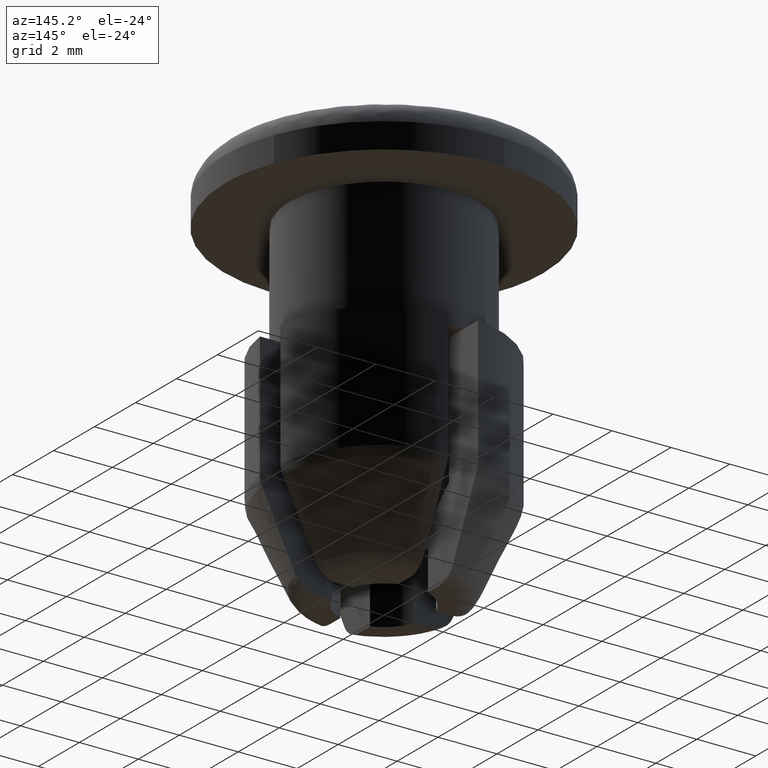
[diagram: clean part render]
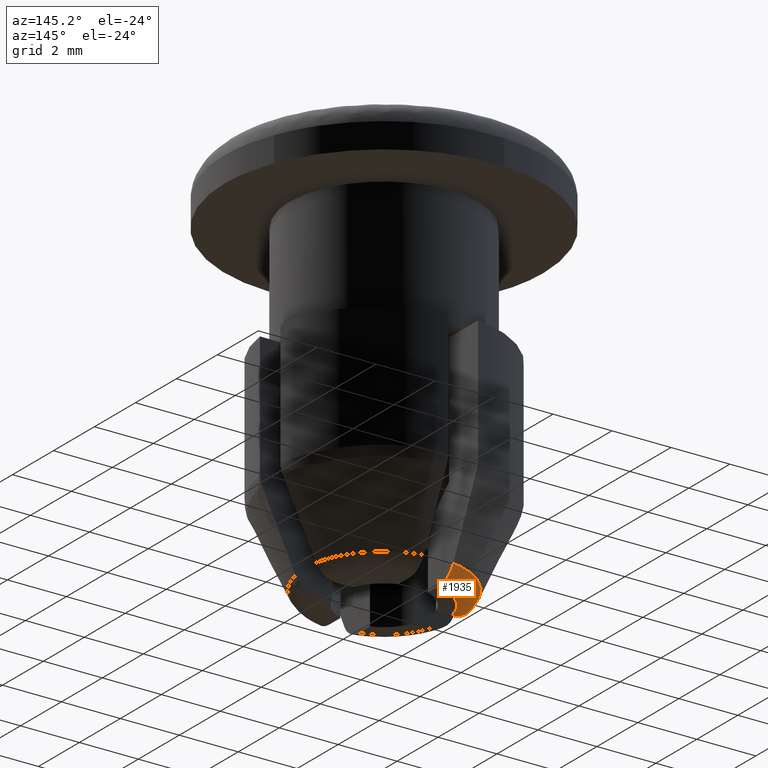
[diagram: same view with one face highlighted and labeled with its STEP entity id]
A machine part, auxiliary view. The second image highlights one B-rep face of the part: STEP entity #1935.
In plain terms, the highlighted face is a freeform B-spline surface patch.
Its self-contained STEP definition (entity closure, byte-faithful):
#1609=CARTESIAN_POINT('',(-1.959617758645800,0.500000000000000,-13.500299999999999));
#1610=VERTEX_POINT('',#1609);
#1618=CARTESIAN_POINT('',(-0.500000000000011,1.959617758645800,-13.500299999999999));
#1619=VERTEX_POINT('',#1618);
#1620=CARTESIAN_POINT('',(-1.959617758645803,0.500000000000001,-13.500299999999999));
#1621=CARTESIAN_POINT('',(-1.662901377916503,1.662901377916493,-13.500300000000005));
#1622=CARTESIAN_POINT('',(-0.500000000000011,1.959617758645800,-13.500299999999999));
#1630=(BOUNDED_CURVE()B_SPLINE_CURVE(2,(#1620,#1621,#1622),.UNSPECIFIED.,.F.,.U.)CURVE()GEOMETRIC_REPRESENTATION_ITEM()QUASI_UNIFORM_CURVE()RATIONAL_B_SPLINE_CURVE((1.0,0.859974483912830,1.0))REPRESENTATION_ITEM(''));
#1631=EDGE_CURVE('',#1610,#1619,#1630,.T.);
#1861=CARTESIAN_POINT('',(-2.698645826319179,0.352734620559445,-13.021626771915608));
#1862=CARTESIAN_POINT('',(-2.427462303505342,2.427462303505342,-13.021626771915605));
#1863=CARTESIAN_POINT('',(-0.352734620559445,2.698645826319180,-13.021626771915608));
#1864=CARTESIAN_POINT('',(-2.503634184457258,0.327245037292914,-13.528440481045426));
#1865=CARTESIAN_POINT('',(-2.252047136110007,2.252047136110007,-13.528440481045424));
#1866=CARTESIAN_POINT('',(-0.327245037292914,2.503634184457258,-13.528440481045426));
#1867=CARTESIAN_POINT('',(-1.965363539264359,0.256888753434289,-13.499215475931072));
#1868=CARTESIAN_POINT('',(-1.767866630633510,1.767866630633510,-13.499215475931070));
#1869=CARTESIAN_POINT('',(-0.256888753434289,1.965363539264359,-13.499215475931072));
#1877=(BOUNDED_SURFACE()B_SPLINE_SURFACE(2,2,((#1861,#1864,#1867),(#1862,#1865,#1868),(#1863,#1866,#1869)),.UNSPECIFIED.,.F.,.F.,.U.)B_SPLINE_SURFACE_WITH_KNOTS((3,3),(3,3),(0.0,3.701073293588391),(0.0,0.972917662462895),.UNSPECIFIED.)GEOMETRIC_REPRESENTATION_ITEM()RATIONAL_B_SPLINE_SURFACE(((0.855282404769445,0.692124573890833,0.854365498112586),(0.678057418842422,0.548707888146415,0.677330506471020),(0.855282404769445,0.692124573890833,0.854365498112586)))REPRESENTATION_ITEM('')SURFACE());
#1878=CARTESIAN_POINT('',(-2.659426441461195,0.500000000000000,-13.058784187287459));
#1879=VERTEX_POINT('',#1878);
#1880=CARTESIAN_POINT('',(-2.659426441461195,0.500000000000000,-13.058784187287459));
#1881=CARTESIAN_POINT('',(-2.644259815729508,0.500000000000000,-13.091815681517550));
#1882=CARTESIAN_POINT('',(-2.626767658830750,0.500000000000000,-13.123550012450480));
#1883=CARTESIAN_POINT('',(-2.587167287803199,0.500000000000000,-13.184443873298310));
#1884=CARTESIAN_POINT('',(-2.564892510702044,0.500000000000000,-13.213777337699870));
#1885=CARTESIAN_POINT('',(-2.492201616201009,0.500000000000000,-13.296150113837550));
#1886=CARTESIAN_POINT('',(-2.435498832129888,0.500000000000000,-13.343947118549440));
#1887=CARTESIAN_POINT('',(-2.343390389883233,0.500000000000000,-13.401527285124640));
#1888=CARTESIAN_POINT('',(-2.311388330176010,0.500000000000000,-13.418515543480590));
#1889=CARTESIAN_POINT('',(-2.244763285732630,0.500000000000000,-13.448043723700380));
#1890=CARTESIAN_POINT('',(-2.210049009238829,0.500000000000000,-13.460561381392189));
#1891=CARTESIAN_POINT('',(-2.140147149059850,0.500000000000000,-13.480372387469670));
#1892=CARTESIAN_POINT('',(-2.104700392234157,0.500000000000000,-13.487798098153950));
#1893=CARTESIAN_POINT('',(-2.032830212693233,0.500000000000000,-13.497764892637949));
#1894=CARTESIAN_POINT('',(-1.996148382377332,0.500000000000000,-13.500299999999999));
#1895=CARTESIAN_POINT('',(-1.959617758645800,0.500000000000000,-13.500299999999999));
#1896=B_SPLINE_CURVE_WITH_KNOTS('',3,(#1880,#1881,#1882,#1883,#1884,#1885,#1886,#1887,#1888,#1889,#1890,#1891,#1892,#1893,#1894,#1895),.UNSPECIFIED.,.F.,.U.,(4,2,2,2,2,2,2,4),(0.0,0.125000000000001,0.250000000000002,0.499999999999999,0.624999999999999,0.750000000000000,0.875000000000000,1.0),.UNSPECIFIED.);
#1897=EDGE_CURVE('',#1879,#1610,#1896,.T.);
#1898=ORIENTED_EDGE('',*,*,#1897,.F.);
#1899=CARTESIAN_POINT('',(-0.500000000000011,2.659426441460640,-13.058784187287300));
#1900=VERTEX_POINT('',#1899);
#1901=CARTESIAN_POINT('',(-2.659426441461195,0.500000000000000,-13.058784187287459));
#1902=CARTESIAN_POINT('',(-2.317683014058383,2.317683014058286,-13.058784187287300));
#1903=CARTESIAN_POINT('',(-0.500000000000011,2.659426441460640,-13.058784187287300));
#1911=(BOUNDED_CURVE()B_SPLINE_CURVE(2,(#1901,#1902,#1903),.UNSPECIFIED.,.F.,.U.)CURVE()GEOMETRIC_REPRESENTATION_ITEM()QUASI_UNIFORM_CURVE()RATIONAL_B_SPLINE_CURVE((1.0,0.825585596460424,1.0))REPRESENTATION_ITEM(''));
#1912=EDGE_CURVE('',#1879,#1900,#1911,.T.);
#1913=ORIENTED_EDGE('',*,*,#1912,.T.);
#1914=CARTESIAN_POINT('',(-0.500000000000011,1.959617758645800,-13.500299999999999));
#1915=CARTESIAN_POINT('',(-0.500000000000011,2.032817680387002,-13.500299999999999));
#1916=CARTESIAN_POINT('',(-0.500000000000011,2.104607918084249,-13.490430828910830));
#1917=CARTESIAN_POINT('',(-0.500000000000011,2.210138686550090,-13.460542842247150));
#1918=CARTESIAN_POINT('',(-0.500000000000011,2.244838813340626,-13.448008946742011));
#1919=CARTESIAN_POINT('',(-0.500000000000011,2.311266478753997,-13.418570850217460));
#1920=CARTESIAN_POINT('',(-0.500000000000011,2.343281598257899,-13.401594799027951));
#1921=CARTESIAN_POINT('',(-0.500000000000011,2.404889809701285,-13.363082370384079));
#1922=CARTESIAN_POINT('',(-0.500000000000011,2.434709675156670,-13.341342899601610));
#1923=CARTESIAN_POINT('',(-0.500000000000011,2.490514401817669,-13.294070597990521));
#1924=CARTESIAN_POINT('',(-0.500000000000011,2.542381532553250,-13.243229475829169));
#1925=CARTESIAN_POINT('',(-0.500000000000011,2.586514984159994,-13.185378971921470));
#1926=CARTESIAN_POINT('',(-0.500000000000011,2.626606228583818,-13.123864833568771));
#1927=CARTESIAN_POINT('',(-0.500000000000011,2.644282954692356,-13.091765287017930));
#1928=CARTESIAN_POINT('',(-0.500000000000011,2.659426441460640,-13.058784187287300));
#1929=B_SPLINE_CURVE_WITH_KNOTS('',3,(#1914,#1915,#1916,#1917,#1918,#1919,#1920,#1921,#1922,#1923,#1924,#1925,#1926,#1927,#1928),.UNSPECIFIED.,.F.,.U.,(4,2,2,2,2,1,2,4),(0.0,0.250000000000001,0.375000000000001,0.500000000000001,0.625000000000001,0.750000000000000,0.875000000000000,1.0),.UNSPECIFIED.);
#1930=EDGE_CURVE('',#1619,#1900,#1929,.T.);
#1931=ORIENTED_EDGE('',*,*,#1930,.F.);
#1932=ORIENTED_EDGE('',*,*,#1631,.F.);
#1933=EDGE_LOOP('',(#1898,#1913,#1931,#1932));
#1934=FACE_OUTER_BOUND('',#1933,.T.);
#1935=ADVANCED_FACE('',(#1934),#1877,.T.);